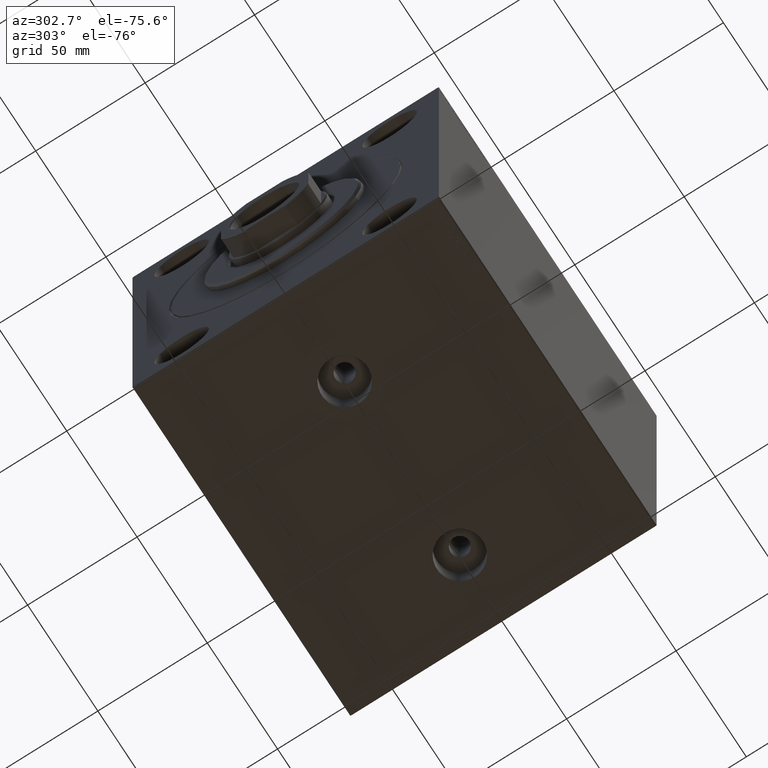
[diagram: clean part render]
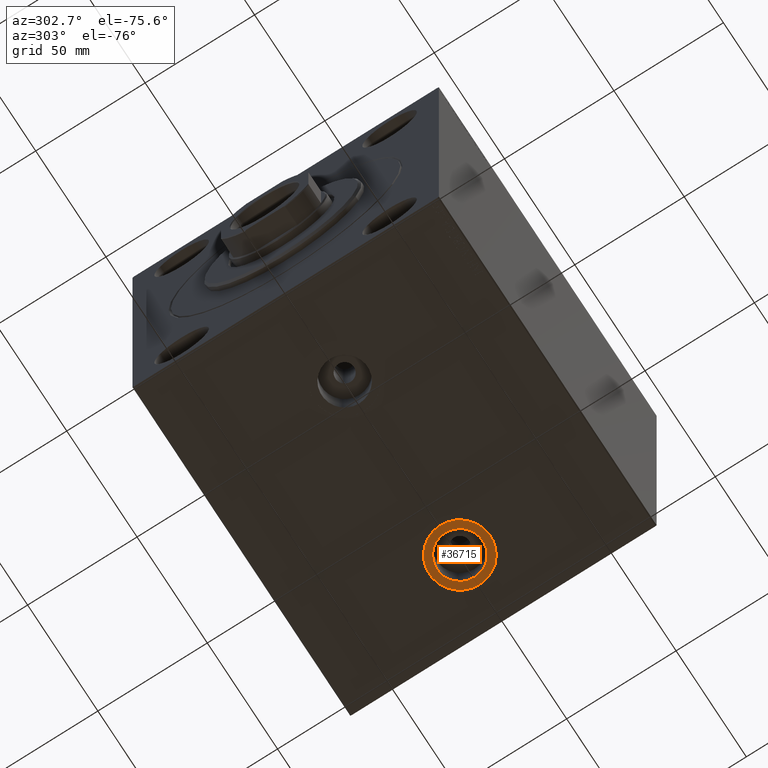
[diagram: same view with one face highlighted and labeled with its STEP entity id]
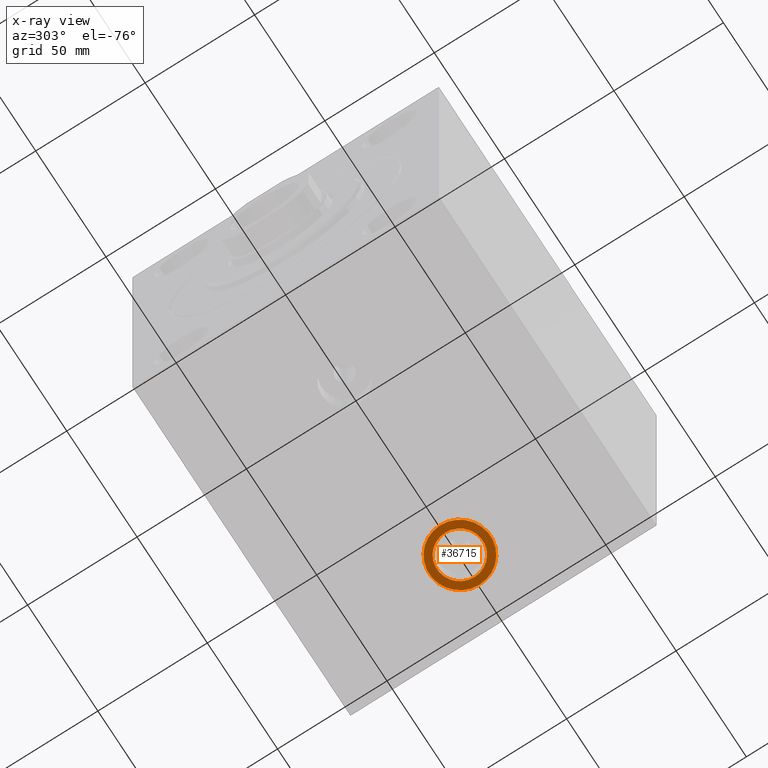
[diagram: x-ray of the same camera — body ghosted, the highlighted face saturated]
A machine part, auxiliary view. The second image highlights one B-rep face of the part: STEP entity #36715.
The next image is the same camera in x-ray: the body ghosted, the highlighted face saturated — about 0% of this face is hidden behind the body in this view.
In plain terms, the highlighted planar face has unit normal (0, 0, -1).
Its self-contained STEP definition (entity closure, byte-faithful):
#42 = AXIS2_PLACEMENT_3D ( 'NONE', #42781, #28803, #39363 ) ;
#599 = DIRECTION ( 'NONE',  ( 0.000000000000000000, 0.000000000000000000, -1.000000000000000000 ) ) ;
#2755 = DIRECTION ( 'NONE',  ( -1.000000000000000000, 0.000000000000000000, 0.000000000000000000 ) ) ;
#3660 = DIRECTION ( 'NONE',  ( 0.000000000000000000, 0.000000000000000000, -1.000000000000000000 ) ) ;
#4248 = CARTESIAN_POINT ( 'NONE',  ( 123.9999999999999858, -4.301697372725748075E-15, -84.90000000000003411 ) ) ;
#5754 = CIRCLE ( 'NONE', #16753, 10.48000000000000398 ) ;
#5799 = DIRECTION ( 'NONE',  ( -1.000000000000000000, 0.000000000000000000, -0.000000000000000000 ) ) ;
#7925 = CARTESIAN_POINT ( 'NONE',  ( 137.9999999999999716, -2.587191853919453240E-15, -84.90000000000003411 ) ) ;
#9738 = CARTESIAN_POINT ( 'NONE',  ( 109.9999999999999858, -4.301697372725748075E-15, -84.90000000000003411 ) ) ;
#9930 = DIRECTION ( 'NONE',  ( 0.000000000000000000, 0.000000000000000000, -1.000000000000000000 ) ) ;
#11597 = DIRECTION ( 'NONE',  ( -1.000000000000000000, 0.000000000000000000, 0.000000000000000000 ) ) ;
#11794 = EDGE_CURVE ( 'NONE', #19630, #33076, #24925, .T. ) ;
#15548 = ORIENTED_EDGE ( 'NONE', *, *, #22306, .T. ) ;
#16753 = AXIS2_PLACEMENT_3D ( 'NONE', #17193, #34603, #30928 ) ;
#17193 = CARTESIAN_POINT ( 'NONE',  ( 123.9999999999999858, -4.301697372725748075E-15, -84.90000000000003411 ) ) ;
#17582 = ORIENTED_EDGE ( 'NONE', *, *, #11794, .T. ) ;
#18225 = CARTESIAN_POINT ( 'NONE',  ( 113.5199999999999818, -4.301697372725748075E-15, -84.90000000000003411 ) ) ;
#19630 = VERTEX_POINT ( 'NONE', #9738 ) ;
#21204 = EDGE_CURVE ( 'NONE', #44454, #30061, #23148, .T. ) ;
#22306 = EDGE_CURVE ( 'NONE', #33076, #19630, #31958, .T. ) ;
#23148 = CIRCLE ( 'NONE', #42891, 10.48000000000000398 ) ;
#23239 = FACE_OUTER_BOUND ( 'NONE', #25140, .T. ) ;
#24925 = CIRCLE ( 'NONE', #42, 13.99999999999999822 ) ;
#25140 = EDGE_LOOP ( 'NONE', ( #17582, #15548 ) ) ;
#27660 = EDGE_CURVE ( 'NONE', #30061, #44454, #5754, .T. ) ;
#28164 = CARTESIAN_POINT ( 'NONE',  ( 123.9999999999999858, -4.301697372725748075E-15, -84.90000000000003411 ) ) ;
#28803 = DIRECTION ( 'NONE',  ( 0.000000000000000000, 0.000000000000000000, -1.000000000000000000 ) ) ;
#29014 = ORIENTED_EDGE ( 'NONE', *, *, #21204, .F. ) ;
#29869 = CARTESIAN_POINT ( 'NONE',  ( 123.9999999999999858, -4.301697372725748075E-15, -84.90000000000003411 ) ) ;
#30061 = VERTEX_POINT ( 'NONE', #31960 ) ;
#30928 = DIRECTION ( 'NONE',  ( -1.000000000000000000, 0.000000000000000000, 0.000000000000000000 ) ) ;
#31958 = CIRCLE ( 'NONE', #32675, 13.99999999999999822 ) ;
#31960 = CARTESIAN_POINT ( 'NONE',  ( 134.4799999999999898, -3.018267527219322587E-15, -84.90000000000003411 ) ) ;
#32675 = AXIS2_PLACEMENT_3D ( 'NONE', #4248, #599, #11597 ) ;
#33076 = VERTEX_POINT ( 'NONE', #7925 ) ;
#34603 = DIRECTION ( 'NONE',  ( 0.000000000000000000, 0.000000000000000000, -1.000000000000000000 ) ) ;
#36715 = ADVANCED_FACE ( 'NONE', ( #37908, #23239 ), #37226, .T. ) ;
#37226 = PLANE ( 'NONE',  #42471 ) ;
#37457 = EDGE_LOOP ( 'NONE', ( #29014, #44916 ) ) ;
#37908 = FACE_BOUND ( 'NONE', #37457, .T. ) ;
#39363 = DIRECTION ( 'NONE',  ( -1.000000000000000000, 0.000000000000000000, 0.000000000000000000 ) ) ;
#42471 = AXIS2_PLACEMENT_3D ( 'NONE', #29869, #9930, #5799 ) ;
#42781 = CARTESIAN_POINT ( 'NONE',  ( 123.9999999999999858, -4.301697372725748075E-15, -84.90000000000003411 ) ) ;
#42891 = AXIS2_PLACEMENT_3D ( 'NONE', #28164, #3660, #2755 ) ;
#44454 = VERTEX_POINT ( 'NONE', #18225 ) ;
#44916 = ORIENTED_EDGE ( 'NONE', *, *, #27660, .F. ) ;